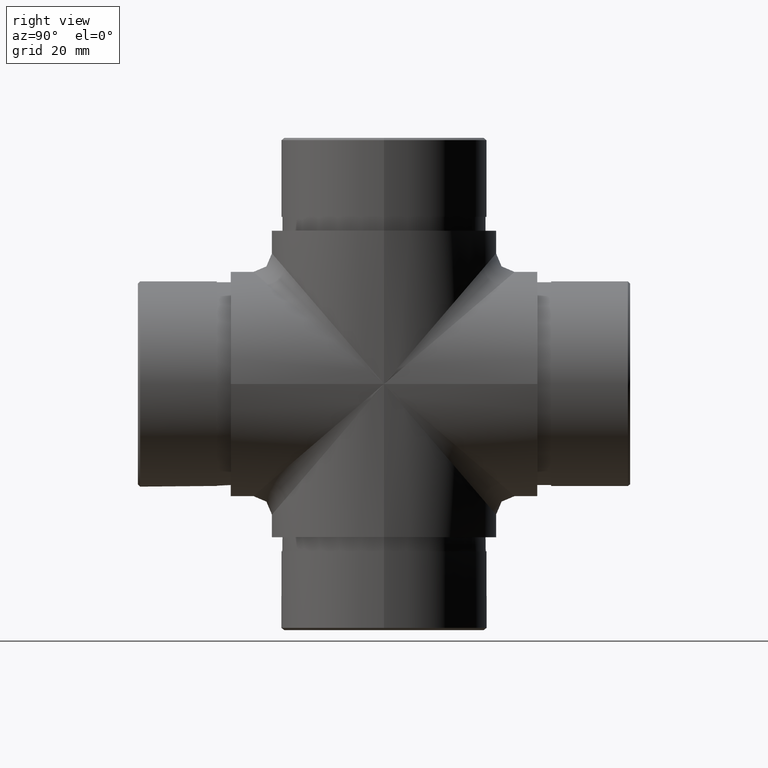
[diagram: clean part render]
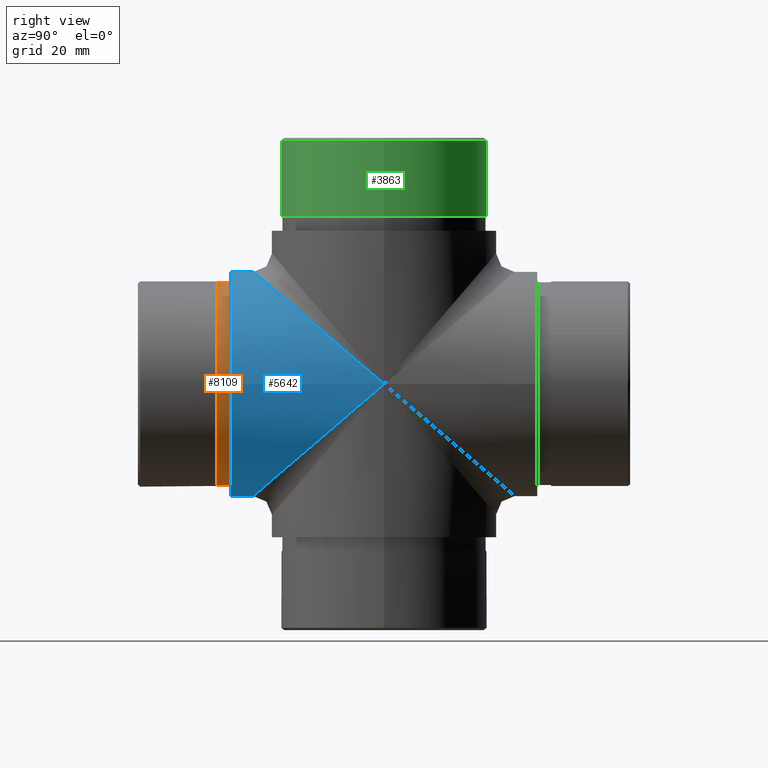
[diagram: same view with three faces highlighted in distinct colors, each labeled with its STEP entity id]
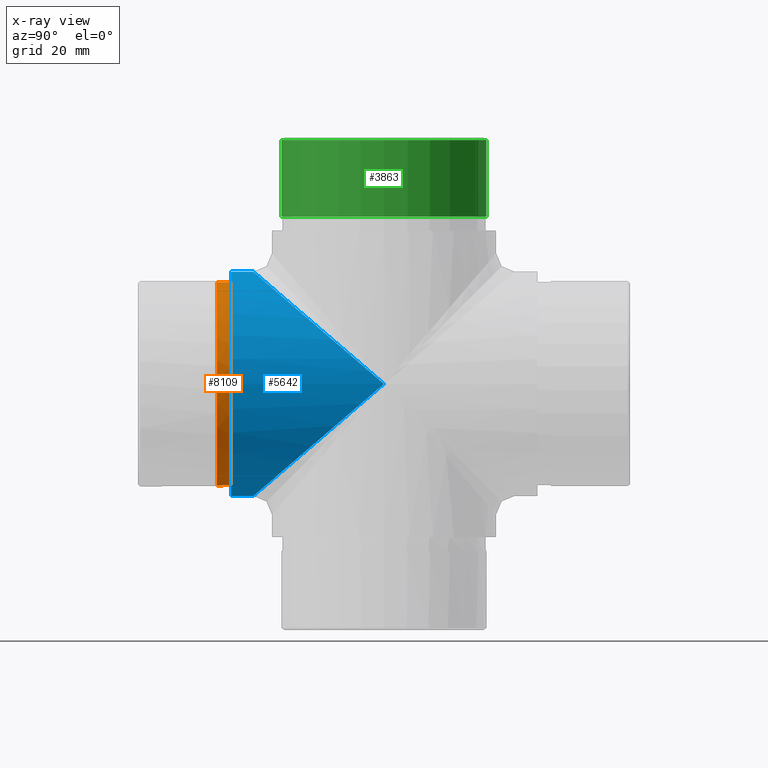
[diagram: x-ray of the same camera — body ghosted, the three highlighted faces saturated]
A machine part, right view with three faces highlighted in distinct colors.
The next image is the same camera in x-ray (body ghosted, the three faces saturated) — at least one of them is partly hidden behind the body in this view.
Their STEP definitions:

[orange] entity #8109 — the highlighted cylindrical surface (bore or boss wall) has radius 21.9 mm, axis along (-0, 1, -0).
#369 = CIRCLE ( 'NONE', #11797, 21.89999999999999900 ) ;
#536 = CARTESIAN_POINT ( 'NONE',  ( 0.0000000000000000000, -36.00000000000000700, 0.0000000000000000000 ) ) ;
#579 = DIRECTION ( 'NONE',  ( -0.0000000000000000000, 1.000000000000000000, -0.0000000000000000000 ) ) ;
#759 = VERTEX_POINT ( 'NONE', #9100 ) ;
#862 = AXIS2_PLACEMENT_3D ( 'NONE', #6632, #6765, #11652 ) ;
#1398 = CIRCLE ( 'NONE', #5948, 21.89999999999999900 ) ;
#1707 = DIRECTION ( 'NONE',  ( 0.0000000000000000000, 0.0000000000000000000, 1.000000000000000000 ) ) ;
#2954 = ORIENTED_EDGE ( 'NONE', *, *, #4340, .T. ) ;
#3008 = ORIENTED_EDGE ( 'NONE', *, *, #11621, .F. ) ;
#3443 = CYLINDRICAL_SURFACE ( 'NONE', #862, 21.89999999999999900 ) ;
#4340 = EDGE_CURVE ( 'NONE', #8595, #8595, #1398, .T. ) ;
#4835 = EDGE_LOOP ( 'NONE', ( #2954 ) ) ;
#5141 = FACE_OUTER_BOUND ( 'NONE', #4835, .T. ) ;
#5948 = AXIS2_PLACEMENT_3D ( 'NONE', #536, #579, #11334 ) ;
#6632 = CARTESIAN_POINT ( 'NONE',  ( 0.0000000000000000000, -36.00000000000000700, 0.0000000000000000000 ) ) ;
#6765 = DIRECTION ( 'NONE',  ( -0.0000000000000000000, 1.000000000000000000, -0.0000000000000000000 ) ) ;
#7563 = DIRECTION ( 'NONE',  ( -0.0000000000000000000, 1.000000000000000000, -0.0000000000000000000 ) ) ;
#8109 = ADVANCED_FACE ( 'NONE', ( #5141, #11870 ), #3443, .T. ) ;
#8116 = CARTESIAN_POINT ( 'NONE',  ( 0.0000000000000000000, -36.00000000000000700, -21.89999999999999900 ) ) ;
#8595 = VERTEX_POINT ( 'NONE', #8116 ) ;
#9100 = CARTESIAN_POINT ( 'NONE',  ( 0.0000000000000000000, -33.00000000000000000, 21.89999999999999900 ) ) ;
#10485 = EDGE_LOOP ( 'NONE', ( #3008 ) ) ;
#11334 = DIRECTION ( 'NONE',  ( 0.0000000000000000000, 0.0000000000000000000, -1.000000000000000000 ) ) ;
#11621 = EDGE_CURVE ( 'NONE', #759, #759, #369, .T. ) ;
#11652 = DIRECTION ( 'NONE',  ( 0.0000000000000000000, 0.0000000000000000000, 1.000000000000000000 ) ) ;
#11797 = AXIS2_PLACEMENT_3D ( 'NONE', #12447, #7563, #1707 ) ;
#11870 = FACE_OUTER_BOUND ( 'NONE', #10485, .T. ) ;
#12447 = CARTESIAN_POINT ( 'NONE',  ( 0.0000000000000000000, -33.00000000000000000, 0.0000000000000000000 ) ) ;

[blue] entity #5642 — the highlighted cylindrical surface (bore or boss wall) has radius 24.15 mm, axis along (-0, -1, -0).
#623 = EDGE_LOOP ( 'NONE', ( #3618 ) ) ;
#1112 = CARTESIAN_POINT ( 'NONE',  ( -24.15000000000000600, 0.0000000000000000000, 0.0000000000000000000 ) ) ;
#1124 = VERTEX_POINT ( 'NONE', #10768 ) ;
#1915 = CARTESIAN_POINT ( 'NONE',  ( 0.0000000000000000000, -33.00000000000000000, 0.0000000000000000000 ) ) ;
#2214 = EDGE_CURVE ( 'NONE', #1124, #8584, #9991, .T. ) ;
#2409 = FACE_OUTER_BOUND ( 'NONE', #623, .T. ) ;
#3070 = CARTESIAN_POINT ( 'NONE',  ( -24.14999999999998800, -56.30000000000001100, 48.30000000000001800 ) ) ;
#3417 = CARTESIAN_POINT ( 'NONE',  ( -24.15000000000000900, -56.29999999999999000, -48.29999999999999700 ) ) ;
#3618 = ORIENTED_EDGE ( 'NONE', *, *, #5895, .T. ) ;
#4743 = CARTESIAN_POINT ( 'NONE',  ( 24.14999999999998800, -56.30000000000001100, 48.30000000000001800 ) ) ;
#4961 = ORIENTED_EDGE ( 'NONE', *, *, #2214, .T. ) ;
#5180 = DIRECTION ( 'NONE',  ( -0.0000000000000000000, -1.000000000000000000, -0.0000000000000000000 ) ) ;
#5386 = CARTESIAN_POINT ( 'NONE',  ( 24.15000000000000600, 0.0000000000000000000, 0.0000000000000000000 ) ) ;
#5642 = ADVANCED_FACE ( 'NONE', ( #2409, #6845 ), #12510, .T. ) ;
#5895 = EDGE_CURVE ( 'NONE', #10270, #10270, #6079, .T. ) ;
#6007 = EDGE_LOOP ( 'NONE', ( #10831, #4961 ) ) ;
#6079 = CIRCLE ( 'NONE', #8772, 24.15000000000000600 ) ;
#6282 = AXIS2_PLACEMENT_3D ( 'NONE', #12061, #5180, #8141 ) ;
#6804 = EDGE_CURVE ( 'NONE', #8584, #1124, #11060, .T. ) ;
#6845 = FACE_OUTER_BOUND ( 'NONE', #6007, .T. ) ;
#7726 = DIRECTION ( 'NONE',  ( 0.0000000000000000000, 1.000000000000000000, 0.0000000000000000000 ) ) ;
#8141 = DIRECTION ( 'NONE',  ( 0.0000000000000000000, 0.0000000000000000000, -1.000000000000000000 ) ) ;
#8584 = VERTEX_POINT ( 'NONE', #11314 ) ;
#8772 = AXIS2_PLACEMENT_3D ( 'NONE', #1915, #7726, #8776 ) ;
#8776 = DIRECTION ( 'NONE',  ( 0.0000000000000000000, 0.0000000000000000000, 1.000000000000000000 ) ) ;
#9296 = CARTESIAN_POINT ( 'NONE',  ( -24.15000000000000600, 0.0000000000000000000, 0.0000000000000000000 ) ) ;
#9991 =( BOUNDED_CURVE ( )  B_SPLINE_CURVE ( 3, ( #9296, #3417, #11241, #5386 ),
 .UNSPECIFIED., .F., .F. ) 
 B_SPLINE_CURVE_WITH_KNOTS ( ( 4, 4 ),
 ( 4.712388980384689700, 7.853981633974482800 ),
 .UNSPECIFIED. ) 
 CURVE ( )  GEOMETRIC_REPRESENTATION_ITEM ( )  RATIONAL_B_SPLINE_CURVE ( ( 1.000000000000000000, 0.3333333333333333700, 0.3333333333333333700, 1.000000000000000000 ) ) 
 REPRESENTATION_ITEM ( '' )  );
#10270 = VERTEX_POINT ( 'NONE', #10932 ) ;
#10604 = CARTESIAN_POINT ( 'NONE',  ( 24.15000000000000600, 0.0000000000000000000, 0.0000000000000000000 ) ) ;
#10768 = CARTESIAN_POINT ( 'NONE',  ( -24.15000000000000600, 0.0000000000000000000, 0.0000000000000000000 ) ) ;
#10831 = ORIENTED_EDGE ( 'NONE', *, *, #6804, .T. ) ;
#10932 = CARTESIAN_POINT ( 'NONE',  ( 0.0000000000000000000, -33.00000000000000000, 24.15000000000000600 ) ) ;
#11060 =( BOUNDED_CURVE ( )  B_SPLINE_CURVE ( 3, ( #10604, #4743, #3070, #1112 ),
 .UNSPECIFIED., .F., .F. ) 
 B_SPLINE_CURVE_WITH_KNOTS ( ( 4, 4 ),
 ( 1.570796326794896800, 4.712388980384689700 ),
 .UNSPECIFIED. ) 
 CURVE ( )  GEOMETRIC_REPRESENTATION_ITEM ( )  RATIONAL_B_SPLINE_CURVE ( ( 1.000000000000000000, 0.3333333333333333700, 0.3333333333333333700, 1.000000000000000000 ) ) 
 REPRESENTATION_ITEM ( '' )  );
#11241 = CARTESIAN_POINT ( 'NONE',  ( 24.14999999999999500, -56.30000000000000400, -48.30000000000001100 ) ) ;
#11314 = CARTESIAN_POINT ( 'NONE',  ( 24.15000000000000600, 0.0000000000000000000, 0.0000000000000000000 ) ) ;
#12061 = CARTESIAN_POINT ( 'NONE',  ( 0.0000000000000000000, 33.00000000000000000, 0.0000000000000000000 ) ) ;
#12510 = CYLINDRICAL_SURFACE ( 'NONE', #6282, 24.15000000000000600 ) ;

[green] entity #3863 — the highlighted cylindrical surface (bore or boss wall) has radius 22.1 mm, axis along (-0, -0, -1).
#185 = VERTEX_POINT ( 'NONE', #2073 ) ;
#351 = EDGE_CURVE ( 'NONE', #185, #185, #8371, .T. ) ;
#582 = DIRECTION ( 'NONE',  ( 0.0000000000000000000, 0.0000000000000000000, 1.000000000000000000 ) ) ;
#1730 = DIRECTION ( 'NONE',  ( 0.0000000000000000000, 0.0000000000000000000, -1.000000000000000000 ) ) ;
#2073 = CARTESIAN_POINT ( 'NONE',  ( 22.10000000000000100, 0.0000000000000000000, 52.50000000000000700 ) ) ;
#2156 = AXIS2_PLACEMENT_3D ( 'NONE', #4688, #1730, #8594 ) ;
#2715 = CYLINDRICAL_SURFACE ( 'NONE', #7496, 22.10000000000000100 ) ;
#3105 = ORIENTED_EDGE ( 'NONE', *, *, #11284, .T. ) ;
#3492 = DIRECTION ( 'NONE',  ( -1.000000000000000000, 0.0000000000000000000, 0.0000000000000000000 ) ) ;
#3845 = ORIENTED_EDGE ( 'NONE', *, *, #351, .T. ) ;
#3863 = ADVANCED_FACE ( 'NONE', ( #12221, #4726 ), #2715, .T. ) ;
#4688 = CARTESIAN_POINT ( 'NONE',  ( 0.0000000000000000000, 0.0000000000000000000, 52.50000000000000700 ) ) ;
#4726 = FACE_OUTER_BOUND ( 'NONE', #6318, .T. ) ;
#5494 = DIRECTION ( 'NONE',  ( -0.0000000000000000000, -0.0000000000000000000, -1.000000000000000000 ) ) ;
#5569 = EDGE_LOOP ( 'NONE', ( #3845 ) ) ;
#6318 = EDGE_LOOP ( 'NONE', ( #3105 ) ) ;
#6419 = CARTESIAN_POINT ( 'NONE',  ( 0.0000000000000000000, 0.0000000000000000000, 36.00000000000000700 ) ) ;
#6730 = VERTEX_POINT ( 'NONE', #8074 ) ;
#6790 = AXIS2_PLACEMENT_3D ( 'NONE', #6419, #582, #9393 ) ;
#7496 = AXIS2_PLACEMENT_3D ( 'NONE', #11309, #5494, #3492 ) ;
#8074 = CARTESIAN_POINT ( 'NONE',  ( 22.10000000000000100, 0.0000000000000000000, 36.00000000000000700 ) ) ;
#8371 = CIRCLE ( 'NONE', #2156, 22.10000000000000100 ) ;
#8594 = DIRECTION ( 'NONE',  ( 1.000000000000000000, 0.0000000000000000000, 0.0000000000000000000 ) ) ;
#9393 = DIRECTION ( 'NONE',  ( 1.000000000000000000, 0.0000000000000000000, 0.0000000000000000000 ) ) ;
#11201 = CIRCLE ( 'NONE', #6790, 22.10000000000000100 ) ;
#11284 = EDGE_CURVE ( 'NONE', #6730, #6730, #11201, .T. ) ;
#11309 = CARTESIAN_POINT ( 'NONE',  ( 0.0000000000000000000, 0.0000000000000000000, 53.00000000000000700 ) ) ;
#12221 = FACE_OUTER_BOUND ( 'NONE', #5569, .T. ) ;